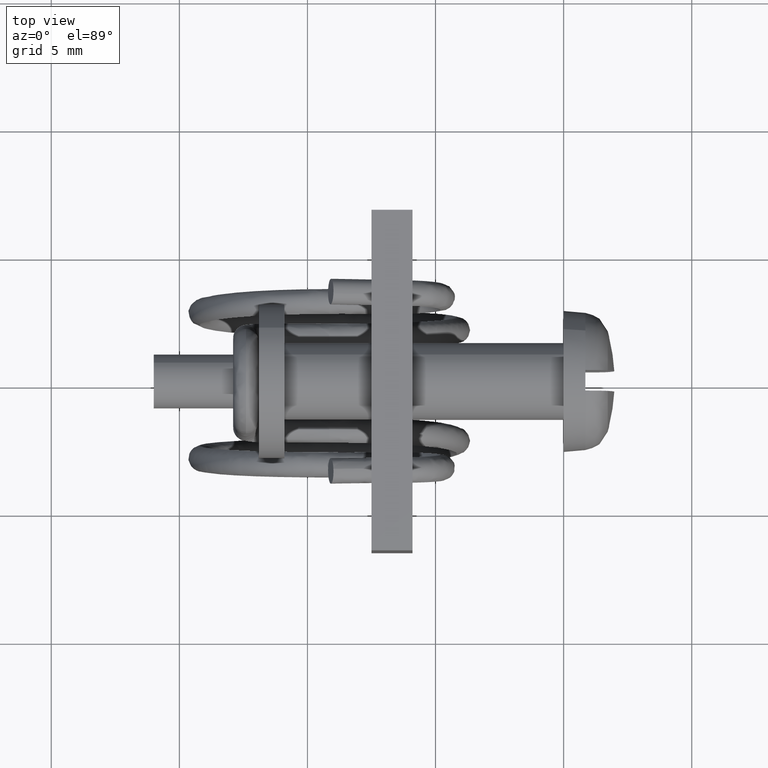
[diagram: clean part render]
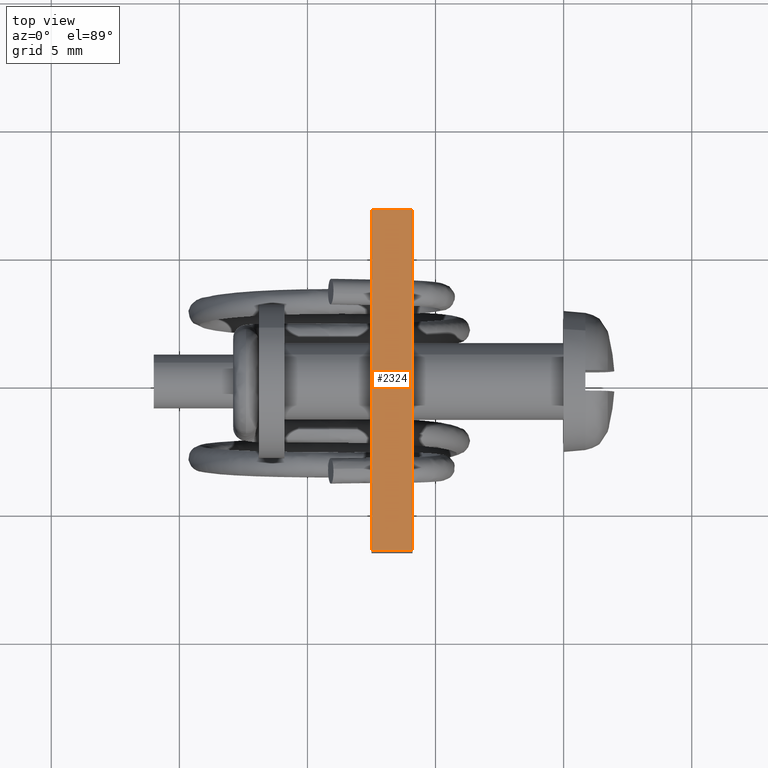
[diagram: same view with one face highlighted and labeled with its STEP entity id]
A machine part, top view. The second image highlights one B-rep face of the part: STEP entity #2324.
In plain terms, the highlighted face is a freeform B-spline surface patch.
Its self-contained STEP definition (entity closure, byte-faithful):
#2160=CARTESIAN_POINT('',(-5.900000000000130,6.650000000000090,3.249999999999930));
#2161=VERTEX_POINT('',#2160);
#2167=CARTESIAN_POINT('',(-5.900000000000130,-6.649999999999889,3.249999999999930));
#2168=VERTEX_POINT('',#2167);
#2169=CARTESIAN_POINT('',(-5.900000000000130,6.650000000000090,3.249999999999930));
#2170=CARTESIAN_POINT('',(-5.900000000000130,-6.649999999999889,3.249999999999930));
#2171=QUASI_UNIFORM_CURVE('',1,(#2169,#2170),.UNSPECIFIED.,.F.,.U.);
#2172=EDGE_CURVE('',#2161,#2168,#2171,.T.);
#2220=CARTESIAN_POINT('',(-7.500000000000000,6.650000000000090,3.249999999999930));
#2221=VERTEX_POINT('',#2220);
#2234=CARTESIAN_POINT('',(-7.500000000000000,-6.649999999999889,3.249999999999930));
#2235=VERTEX_POINT('',#2234);
#2241=CARTESIAN_POINT('',(-7.500000000000000,6.650000000000090,3.249999999999930));
#2242=CARTESIAN_POINT('',(-7.500000000000000,-6.649999999999889,3.249999999999930));
#2243=QUASI_UNIFORM_CURVE('',1,(#2241,#2242),.UNSPECIFIED.,.F.,.U.);
#2244=EDGE_CURVE('',#2221,#2235,#2243,.T.);
#2299=CARTESIAN_POINT('',(-7.500000000000000,-6.649999999999889,3.249999999999930));
#2300=CARTESIAN_POINT('',(-5.900000000000130,-6.649999999999889,3.249999999999930));
#2301=QUASI_UNIFORM_CURVE('',1,(#2299,#2300),.UNSPECIFIED.,.F.,.U.);
#2302=EDGE_CURVE('',#2235,#2168,#2301,.T.);
#2309=CARTESIAN_POINT('',(-7.579919996898883,-7.314334974221909,3.249999999999930));
#2310=CARTESIAN_POINT('',(-5.820079960185902,-7.314334974221909,3.249999999999930));
#2311=CARTESIAN_POINT('',(-7.579919996898883,7.314335330955909,3.249999999999930));
#2312=CARTESIAN_POINT('',(-5.820079960185902,7.314335330955909,3.249999999999930));
#2313=B_SPLINE_SURFACE_WITH_KNOTS('',1,1,((#2309,#2311),(#2310,#2312)),.UNSPECIFIED.,.F.,.F.,.U.,(2,2),(2,2),(0.041708334948495,0.958291687403247),(0.0,14.628670305177820),.UNSPECIFIED.);
#2314=ORIENTED_EDGE('',*,*,#2172,.F.);
#2315=CARTESIAN_POINT('',(-7.500000000000000,6.650000000000090,3.249999999999930));
#2316=CARTESIAN_POINT('',(-5.900000000000130,6.650000000000090,3.249999999999930));
#2317=QUASI_UNIFORM_CURVE('',1,(#2315,#2316),.UNSPECIFIED.,.F.,.U.);
#2318=EDGE_CURVE('',#2221,#2161,#2317,.T.);
#2319=ORIENTED_EDGE('',*,*,#2318,.F.);
#2320=ORIENTED_EDGE('',*,*,#2244,.T.);
#2321=ORIENTED_EDGE('',*,*,#2302,.T.);
#2322=EDGE_LOOP('',(#2314,#2319,#2320,#2321));
#2323=FACE_OUTER_BOUND('',#2322,.T.);
#2324=ADVANCED_FACE('',(#2323),#2313,.T.);